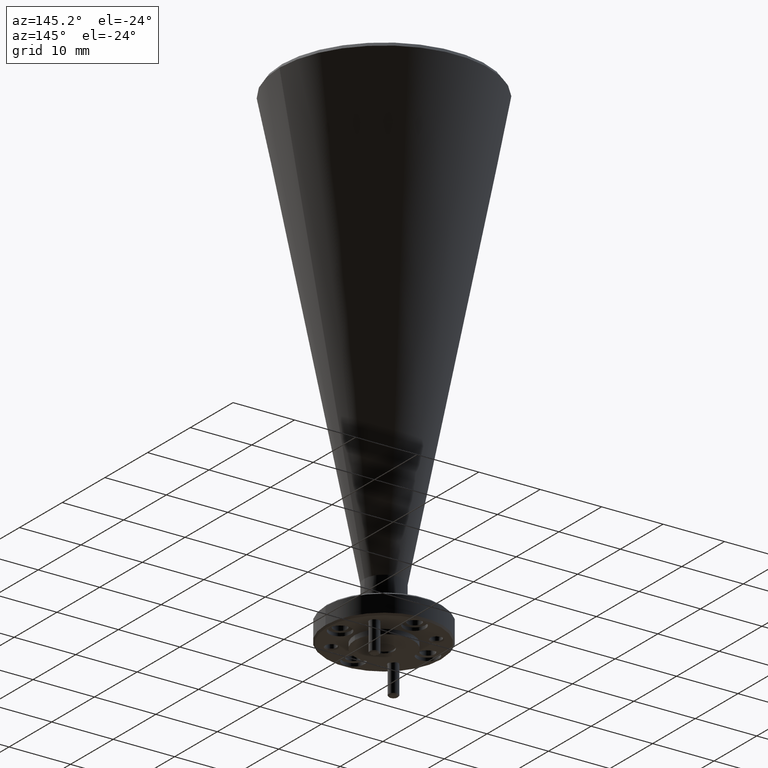
[diagram: clean part render]
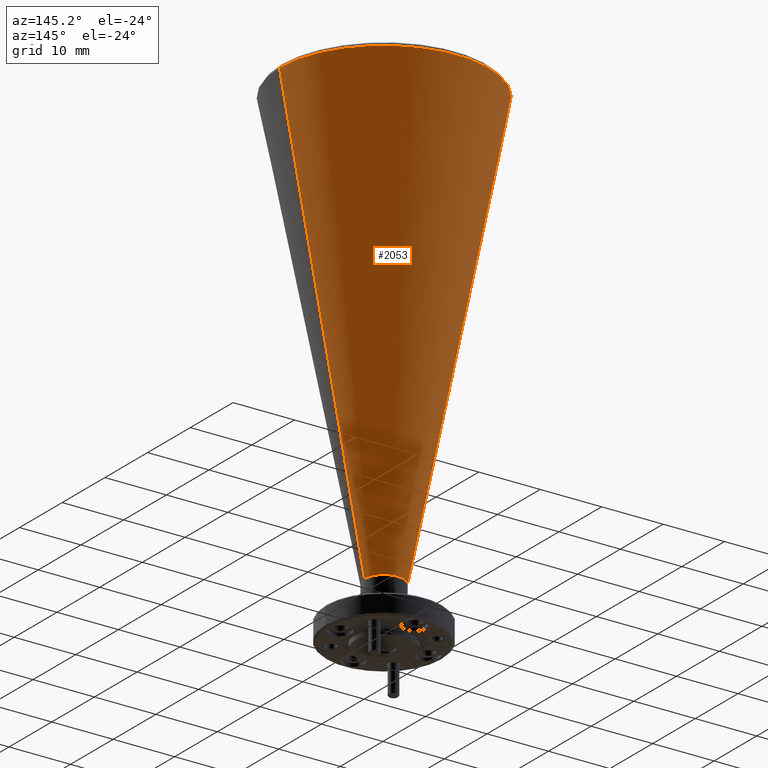
[diagram: same view with one face highlighted and labeled with its STEP entity id]
A machine part, auxiliary view. The second image highlights one B-rep face of the part: STEP entity #2053.
In plain terms, the highlighted conical surface has half-angle 11 deg.
Its self-contained STEP definition (entity closure, byte-faithful):
#80 = CARTESIAN_POINT ( 'NONE',  ( 0.5288116595564684700, 1.390276906475814300, 2.619318667861598700 ) ) ;
#138 = EDGE_CURVE ( 'NONE', #1895, #1899, #2063, .T. ) ;
#193 = CARTESIAN_POINT ( 'NONE',  ( 1.074041434672054800, 1.390276906475814300, -0.1856453613359826100 ) ) ;
#448 = EDGE_LOOP ( 'NONE', ( #1263, #1818, #684, #1549 ) ) ;
#655 = VERTEX_POINT ( 'NONE', #1059 ) ;
#657 = CARTESIAN_POINT ( 'NONE',  ( 1.324041434672054800, 1.390276906475814300, -0.1856453613359826100 ) ) ;
#684 = ORIENTED_EDGE ( 'NONE', *, *, #1206, .T. ) ;
#717 = LINE ( 'NONE', #193, #1634 ) ;
#738 = DIRECTION ( 'NONE',  ( 0.1908089953765380600, 0.0000000000000000000, 0.9816271834476652000 ) ) ;
#793 = CARTESIAN_POINT ( 'NONE',  ( 1.199041434672055000, 1.390276906475814300, -0.1856453613359826100 ) ) ;
#815 = DIRECTION ( 'NONE',  ( -0.1908089953765380600, 2.336736254363994700E-017, 0.9816271834476652000 ) ) ;
#900 = AXIS2_PLACEMENT_3D ( 'NONE', #1344, #1192, #1199 ) ;
#946 = DIRECTION ( 'NONE',  ( 1.000000000000000000, 0.0000000000000000000, 0.0000000000000000000 ) ) ;
#1059 = CARTESIAN_POINT ( 'NONE',  ( 1.869271209787641200, 1.390276906475814300, 2.619318667861598700 ) ) ;
#1099 = EDGE_CURVE ( 'NONE', #1895, #655, #1316, .T. ) ;
#1174 = FACE_OUTER_BOUND ( 'NONE', #448, .T. ) ;
#1180 = CIRCLE ( 'NONE', #1224, 0.6702297751155862300 ) ;
#1192 = DIRECTION ( 'NONE',  ( -0.0000000000000000000, -0.0000000000000000000, 1.000000000000000000 ) ) ;
#1199 = DIRECTION ( 'NONE',  ( 1.000000000000000000, 0.0000000000000000000, 0.0000000000000000000 ) ) ;
#1206 = EDGE_CURVE ( 'NONE', #1208, #655, #1180, .T. ) ;
#1208 = VERTEX_POINT ( 'NONE', #80 ) ;
#1224 = AXIS2_PLACEMENT_3D ( 'NONE', #1237, #1738, #1226 ) ;
#1226 = DIRECTION ( 'NONE',  ( -1.000000000000000000, 0.0000000000000000000, 0.0000000000000000000 ) ) ;
#1237 = CARTESIAN_POINT ( 'NONE',  ( 1.199041434672055000, 1.390276906475814300, 2.619318667861598700 ) ) ;
#1263 = ORIENTED_EDGE ( 'NONE', *, *, #138, .T. ) ;
#1316 = LINE ( 'NONE', #1552, #1751 ) ;
#1344 = CARTESIAN_POINT ( 'NONE',  ( 1.199041434672055000, 1.390276906475814300, -0.1856453613359826100 ) ) ;
#1443 = DIRECTION ( 'NONE',  ( -0.0000000000000000000, -0.0000000000000000000, 1.000000000000000000 ) ) ;
#1468 = AXIS2_PLACEMENT_3D ( 'NONE', #793, #1443, #946 ) ;
#1549 = ORIENTED_EDGE ( 'NONE', *, *, #1099, .F. ) ;
#1552 = CARTESIAN_POINT ( 'NONE',  ( 1.324041434672054800, 1.390276906475814300, -0.1856453613359826100 ) ) ;
#1634 = VECTOR ( 'NONE', #815, 39.37007874015748900 ) ;
#1738 = DIRECTION ( 'NONE',  ( 0.0000000000000000000, 0.0000000000000000000, -1.000000000000000000 ) ) ;
#1751 = VECTOR ( 'NONE', #738, 39.37007874015748900 ) ;
#1818 = ORIENTED_EDGE ( 'NONE', *, *, #1922, .T. ) ;
#1822 = CARTESIAN_POINT ( 'NONE',  ( 1.074041434672054800, 1.390276906475814300, -0.1856453613359826100 ) ) ;
#1895 = VERTEX_POINT ( 'NONE', #657 ) ;
#1899 = VERTEX_POINT ( 'NONE', #1822 ) ;
#1922 = EDGE_CURVE ( 'NONE', #1899, #1208, #717, .T. ) ;
#1977 = CONICAL_SURFACE ( 'NONE', #900, 0.1249999999999999000, 0.1919862177193693600 ) ;
#2053 = ADVANCED_FACE ( 'NONE', ( #1174 ), #1977, .T. ) ;
#2063 = CIRCLE ( 'NONE', #1468, 0.1249999999999999000 ) ;